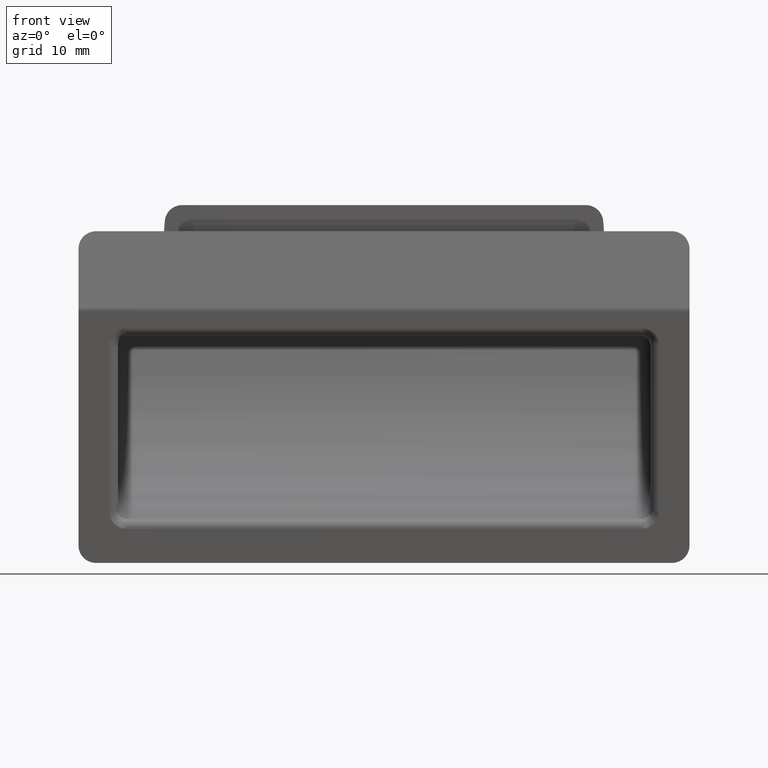
[diagram: clean part render]
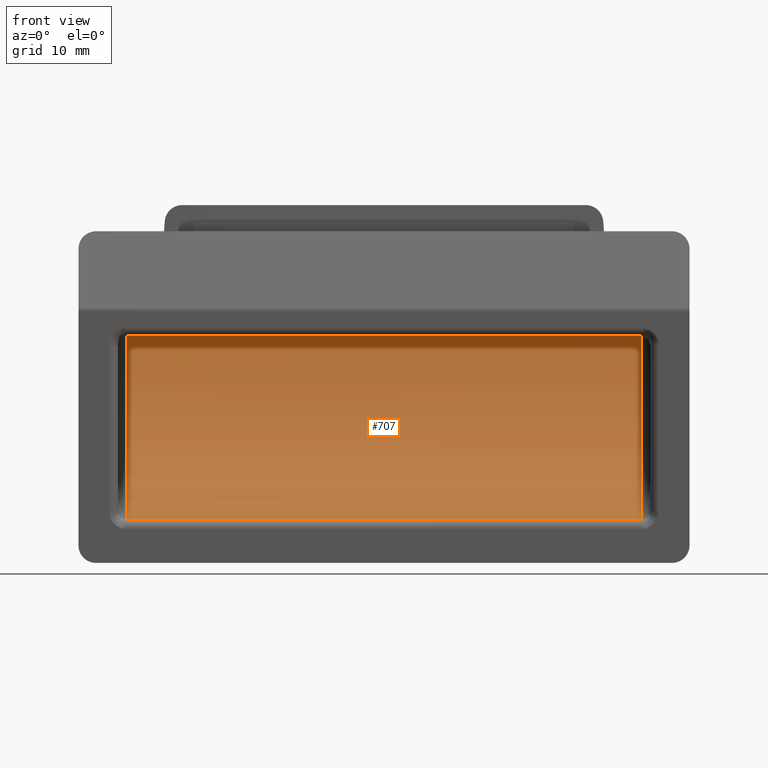
[diagram: same view with one face highlighted and labeled with its STEP entity id]
A machine part, front view. The second image highlights one B-rep face of the part: STEP entity #707.
In plain terms, the highlighted face is a freeform B-spline surface patch.
Its self-contained STEP definition (entity closure, byte-faithful):
#472=CARTESIAN_POINT('',(29.500000000000000,1.421085E-014,-14.750000000000000));
#473=VERTEX_POINT('',#472);
#521=CARTESIAN_POINT('',(29.500000000000000,14.715604989686559,6.242930651828520));
#522=VERTEX_POINT('',#521);
#528=CARTESIAN_POINT('',(29.500000000000000,1.421085E-014,-14.750000000000000));
#529=CARTESIAN_POINT('',(29.500000000000004,12.458482935696608,-7.829004902187507));
#530=CARTESIAN_POINT('',(29.500000000000000,14.715604989686570,6.242930651828508));
#538=(BOUNDED_CURVE()B_SPLINE_CURVE(2,(#528,#529,#530),.UNSPECIFIED.,.F.,.U.)CURVE()GEOMETRIC_REPRESENTATION_ITEM()QUASI_UNIFORM_CURVE()RATIONAL_B_SPLINE_CURVE((1.0,0.899427413516338,1.0))REPRESENTATION_ITEM(''));
#539=EDGE_CURVE('',#473,#522,#538,.T.);
#629=CARTESIAN_POINT('',(-29.500000000000000,14.715604989686559,6.242930651828520));
#630=VERTEX_POINT('',#629);
#636=CARTESIAN_POINT('',(29.500000000000000,14.715604989686559,6.242930651828520));
#637=CARTESIAN_POINT('',(-29.500000000000000,14.715604989686559,6.242930651828520));
#638=QUASI_UNIFORM_CURVE('',1,(#636,#637),.UNSPECIFIED.,.F.,.U.);
#639=EDGE_CURVE('',#522,#630,#638,.T.);
#669=CARTESIAN_POINT('',(-30.975000000000009,14.838391114350570,7.086696651536002));
#670=CARTESIAN_POINT('',(31.011875000000000,14.838391114350570,7.086696651536002));
#671=CARTESIAN_POINT('',(-30.975000000000012,12.817172470448325,-8.377033691177482));
#672=CARTESIAN_POINT('',(31.011875000000007,12.817172470448325,-8.377033691177482));
#673=CARTESIAN_POINT('',(-30.975000000000001,-1.133538307396258,-15.347682851158694));
#674=CARTESIAN_POINT('',(31.011875000000003,-1.133538307396258,-15.347682851158694));
#682=(BOUNDED_SURFACE()B_SPLINE_SURFACE(1,2,((#669,#671,#673),(#670,#672,#674)),.UNSPECIFIED.,.F.,.F.,.U.)B_SPLINE_SURFACE_WITH_KNOTS((2,2),(3,3),(0.0,61.986875000000012),(0.0,29.251176258810720),.UNSPECIFIED.)GEOMETRIC_REPRESENTATION_ITEM()RATIONAL_B_SPLINE_SURFACE(((1.0,0.879105402719018,0.991349575786581),(1.0,0.879105402719018,0.991349575786581)))REPRESENTATION_ITEM('')SURFACE());
#683=CARTESIAN_POINT('',(-29.500000000000000,1.421085E-014,-14.750000000000000));
#684=VERTEX_POINT('',#683);
#685=CARTESIAN_POINT('',(-29.500000000000000,1.421085E-014,-14.750000000000000));
#686=CARTESIAN_POINT('',(29.500000000000000,1.421085E-014,-14.750000000000000));
#687=QUASI_UNIFORM_CURVE('',1,(#685,#686),.UNSPECIFIED.,.F.,.U.);
#688=EDGE_CURVE('',#684,#473,#687,.T.);
#689=ORIENTED_EDGE('',*,*,#688,.T.);
#690=ORIENTED_EDGE('',*,*,#539,.T.);
#691=ORIENTED_EDGE('',*,*,#639,.T.);
#692=CARTESIAN_POINT('',(-29.500000000000000,14.715604989686570,6.242930651828520));
#693=CARTESIAN_POINT('',(-29.500000000000000,12.458482935696608,-7.829004902187494));
#694=CARTESIAN_POINT('',(-29.500000000000000,-2.602085E-014,-14.749999999999931));
#702=(BOUNDED_CURVE()B_SPLINE_CURVE(2,(#692,#693,#694),.UNSPECIFIED.,.F.,.U.)CURVE()GEOMETRIC_REPRESENTATION_ITEM()QUASI_UNIFORM_CURVE()RATIONAL_B_SPLINE_CURVE((1.0,0.899427413516338,1.0))REPRESENTATION_ITEM(''));
#703=EDGE_CURVE('',#630,#684,#702,.T.);
#704=ORIENTED_EDGE('',*,*,#703,.T.);
#705=EDGE_LOOP('',(#689,#690,#691,#704));
#706=FACE_OUTER_BOUND('',#705,.T.);
#707=ADVANCED_FACE('',(#706),#682,.F.);